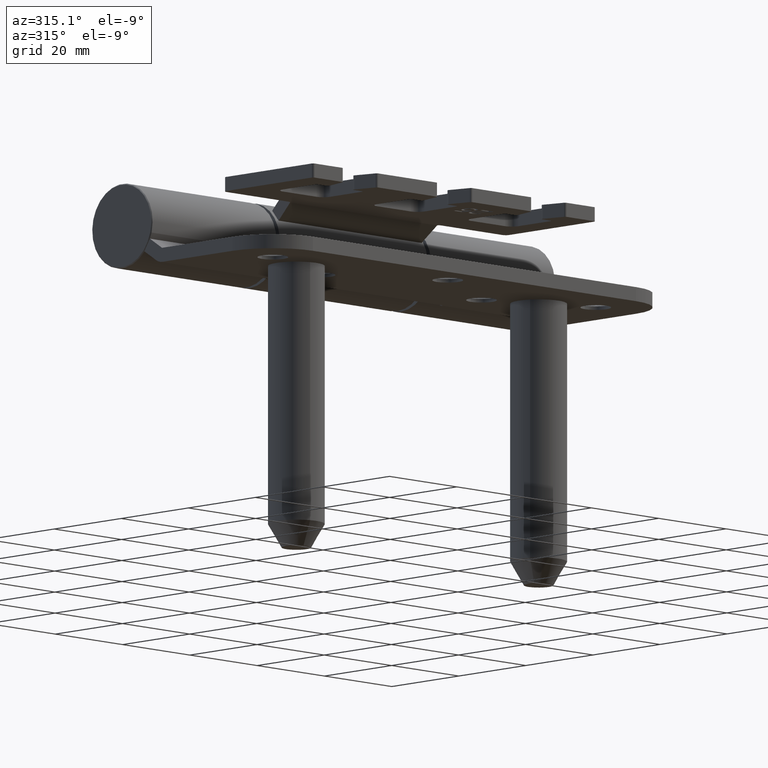
[diagram: clean part render]
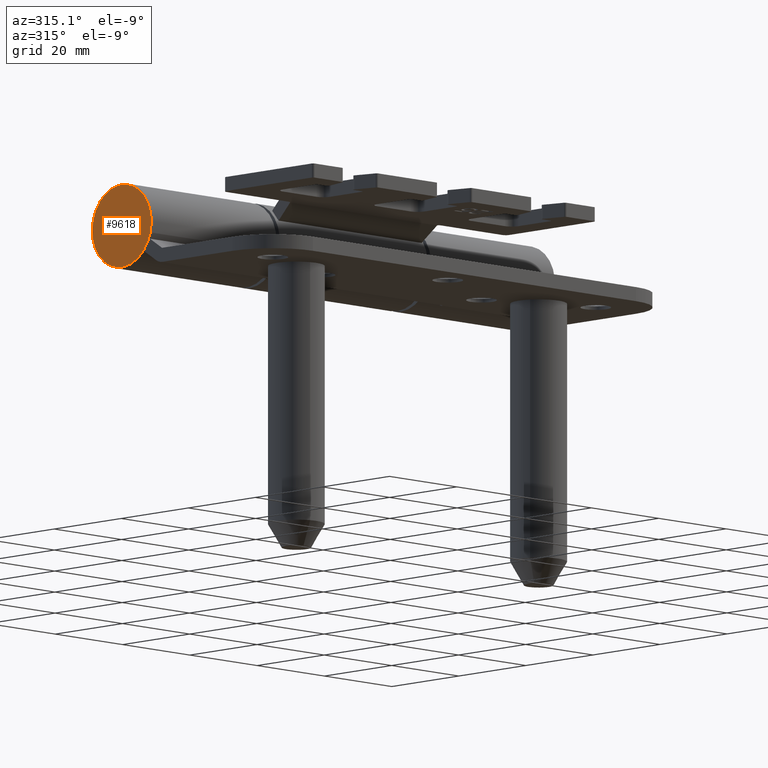
[diagram: same view with one face highlighted and labeled with its STEP entity id]
A machine part, auxiliary view. The second image highlights one B-rep face of the part: STEP entity #9618.
In plain terms, the highlighted planar face has unit normal (1, -0, 0).
Its self-contained STEP definition (entity closure, byte-faithful):
#25 = DIRECTION ( 'NONE',  ( -1.000000000000000000, 3.021674783201199700E-032, 6.291059499726930600E-032 ) ) ;
#928 = VERTEX_POINT ( 'NONE', #14652 ) ;
#2396 = EDGE_CURVE ( 'NONE', #928, #14655, #8870, .T. ) ;
#2409 = ORIENTED_EDGE ( 'NONE', *, *, #12698, .F. ) ;
#4213 = PLANE ( 'NONE',  #17548 ) ;
#4253 = AXIS2_PLACEMENT_3D ( 'NONE', #10889, #25, #9400 ) ;
#4932 = ORIENTED_EDGE ( 'NONE', *, *, #2396, .F. ) ;
#5152 = AXIS2_PLACEMENT_3D ( 'NONE', #10235, #11661, #17180 ) ;
#6104 = FACE_OUTER_BOUND ( 'NONE', #17177, .T. ) ;
#7217 = DIRECTION ( 'NONE',  ( -1.000000000000000000, 3.021674783201199700E-032, -4.268031240114619700E-032 ) ) ;
#8659 = DIRECTION ( 'NONE',  ( -4.268031240114619700E-032, 0.0000000000000000000, 1.000000000000000000 ) ) ;
#8870 = CIRCLE ( 'NONE', #4253, 8.800000000000009600 ) ;
#9400 = DIRECTION ( 'NONE',  ( 0.0000000000000000000, 0.0000000000000000000, 1.000000000000000000 ) ) ;
#9618 = ADVANCED_FACE ( 'NONE', ( #6104 ), #4213, .F. ) ;
#10235 = CARTESIAN_POINT ( 'NONE',  ( 37.00000000000000000, -2.022226441606597600E-030, 1.925929944387235900E-030 ) ) ;
#10889 = CARTESIAN_POINT ( 'NONE',  ( 37.00000000000000000, -2.022226441606597600E-030, 1.925929944387235900E-030 ) ) ;
#11423 = CARTESIAN_POINT ( 'NONE',  ( 37.00000000000000000, -2.022226441606597600E-030, 8.800000000000009600 ) ) ;
#11661 = DIRECTION ( 'NONE',  ( -1.000000000000000000, 3.021674783201199700E-032, 6.291059499726930600E-032 ) ) ;
#12430 = CIRCLE ( 'NONE', #5152, 8.800000000000009600 ) ;
#12698 = EDGE_CURVE ( 'NONE', #14655, #928, #12430, .T. ) ;
#14652 = CARTESIAN_POINT ( 'NONE',  ( 37.00000000000000000, 1.089935651241142200E-015, -8.799999999999998900 ) ) ;
#14655 = VERTEX_POINT ( 'NONE', #11423 ) ;
#15512 = CARTESIAN_POINT ( 'NONE',  ( 37.00000000000000000, 8.799999999999998900, 1.941683782375598100E-016 ) ) ;
#17177 = EDGE_LOOP ( 'NONE', ( #2409, #4932 ) ) ;
#17180 = DIRECTION ( 'NONE',  ( 0.0000000000000000000, 0.0000000000000000000, 1.000000000000000000 ) ) ;
#17548 = AXIS2_PLACEMENT_3D ( 'NONE', #15512, #7217, #8659 ) ;